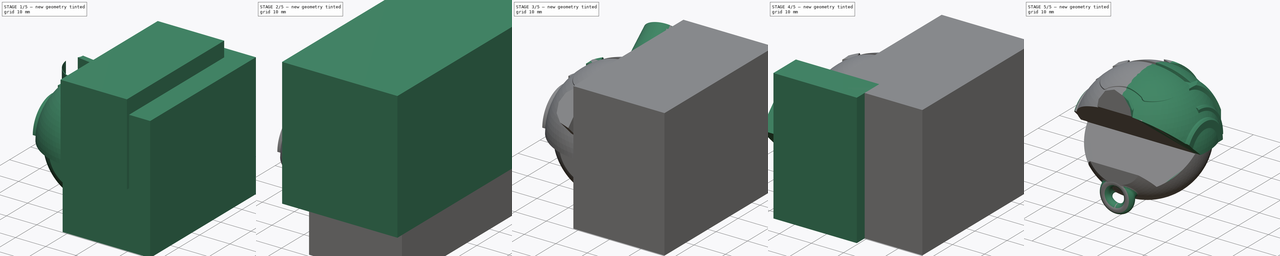
[diagram: build sequence overview — one tinted view per stage of 5, left to right]
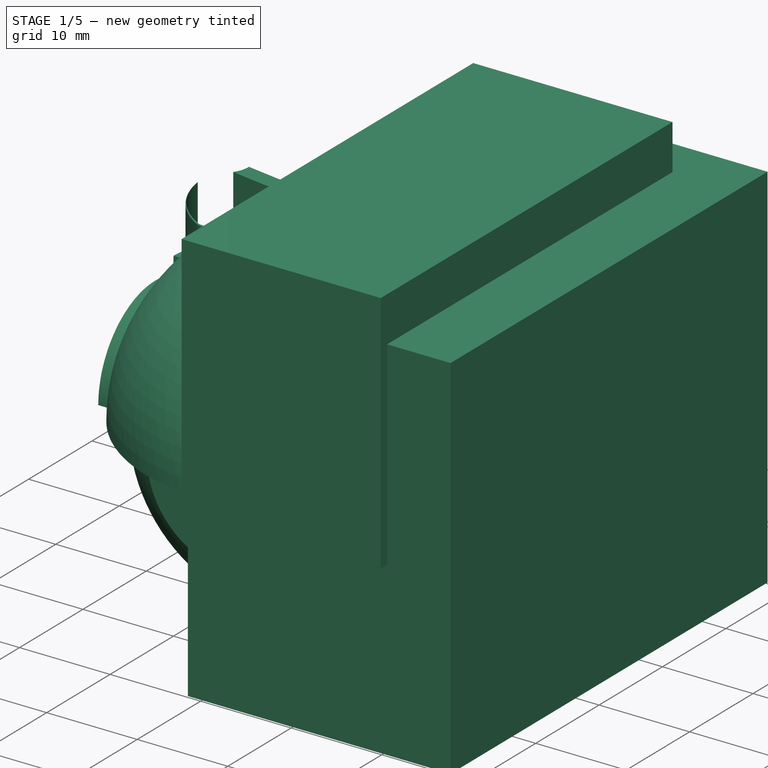
[diagram: stage 1 of 5 — iso view after this stage's code; geometry added in this stage tinted green]
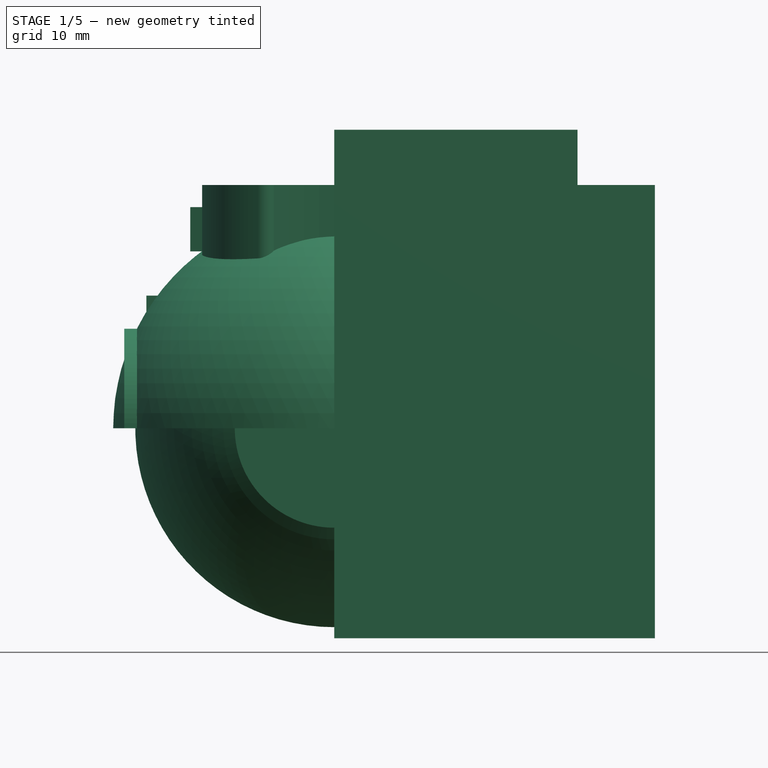
[diagram: stage 1 of 5 — front view after this stage's code; geometry added in this stage tinted green]
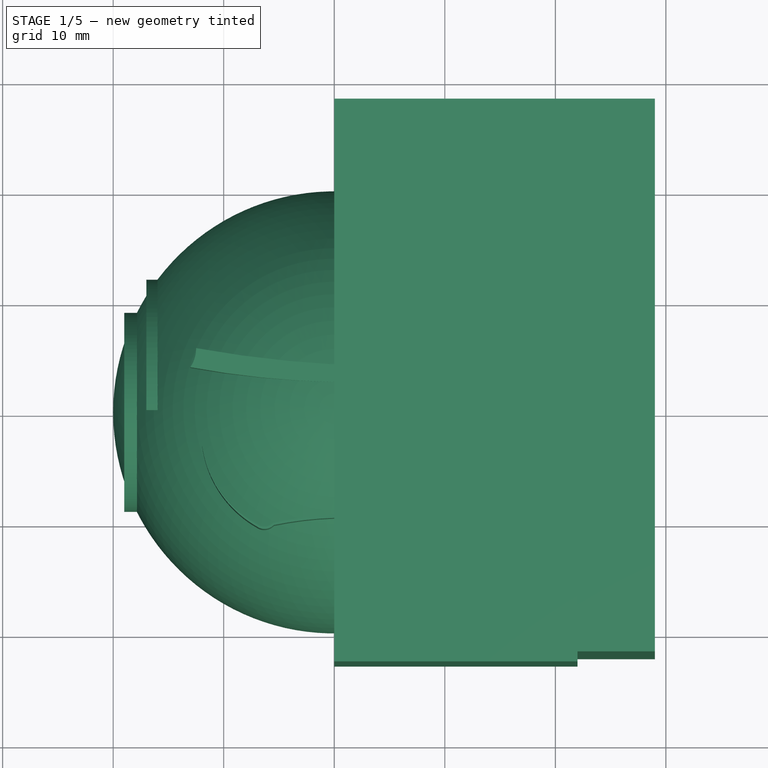
[diagram: stage 1 of 5 — top view after this stage's code; geometry added in this stage tinted green]
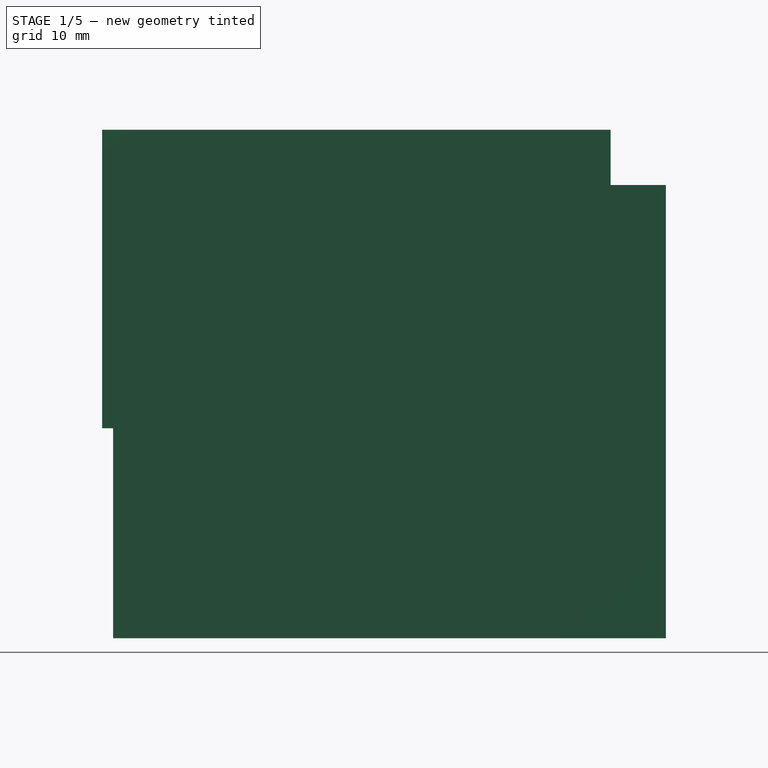
[diagram: stage 1 of 5 — right view after this stage's code; geometry added in this stage tinted green]
FCSTD DOCUMENT  (FreeCAD 0.16R6706 (Git))
Label: IronManHelmet-Key-Chain
License: All rights reserved
LicenseURL: http://en.wikipedia.org/wiki/All_rights_reserved
objects: Part::Cut×15, Part::MultiFuse×9, Part::Box×6, Part::Feature×5, Part::Sphere×5, Sketcher::SketchObject×5, PartDesign::Pad×5, Part::Cylinder×2, Part::Fillet×2, Part::Chamfer×2, Part::Cone×1, Part::Prism×1, Part::Mirroring×1, Part::Torus×1
note: 65 computed .brp shape members not serialized (recipe doc carries the construction recipe); baked Part::Feature solids carry a one-line shape summary decoded from their .brp

FEATURE [Part::Feature] Cut001  label="key-model-002"
  Placement = pos=(0,-11.7436,-26.4262) rot=(0.57735,0.57735,-0.57735;2.0944rad)
  shape: bbox 24.12 x 2.3 x 55.33 mm, 44 faces (baked)
FEATURE [Part::Feature] Sweep001  label="key-ring-model-002"
  Placement = pos=(0,-15.0487,-23.0245) rot=(-0.038302,0.998532,0.038302;1.57227rad)
  shape: bbox 4.645 x 27.51 x 24.52 mm, 4 faces (baked)
FEATURE [Part::Sphere] Sphere  label="Esfera"
  Angle1 = -90
  Angle2 = 90
  Angle3 = 360
  Radius = 18
FEATURE [Part::Sphere] Sphere001  label="Esfera001"
  Angle1 = 0
  Angle2 = 90
  Angle3 = 360
  Radius = 20
FEATURE [Part::Cut] Cut
  Base = -> Sphere001
  Tool = -> Sphere
FEATURE [Sketcher::SketchObject] Sketch001
  Placement = pos=(0,0,16) rot=(0,0,1;0rad)
  sketch-geometry (4):
    g0: ArcOfCircle CenterX=5.68388 CenterY=105.874 CenterZ=0 NormalX=0 NormalY=0 NormalZ=1 Radius=102.039 StartAngle=4.53326 EndAngle=4.65666
    g1: ArcOfCircle CenterX=-15.5234 CenterY=5.45145 CenterZ=0 NormalX=0 NormalY=0 NormalZ=1 Radius=3.02715 StartAngle=5.68468 EndAngle=6.28859
    g2: ArcOfCircle CenterX=1.47752 CenterY=80.7429 CenterZ=0 NormalX=0 NormalY=0 NormalZ=1 Radius=78.3504 StartAngle=4.52625 EndAngle=4.69353
    g3: LineSegment StartX=0 StartY=3.99361 StartZ=0 EndX=0 EndY=2.40645 EndZ=0
  constraints (6):
    c: PointOnObject(g0,g-2)
    c: Coincident(g1,g0)
    c: Coincident(g2,g1)
    c: PointOnObject(g2,g-2)
    c: Coincident(g3,g0)
    c: Coincident(g3,g2)
FEATURE [PartDesign::Pad] Pad
  Length = 4
  Length2 = 100
  Placement = pos=(0,0,16) rot=(0,0,1;0rad)
  Sketch = -> Sketch001
  Type = 0
FEATURE [Part::Box] Box  label="Cubo"
  Height = 27
  Length = 22
  Placement = pos=(0,-23,0) rot=(0,0,1;0rad)
  Width = 46
FEATURE [Sketcher::SketchObject] Sketch005
  Placement = pos=(0,0,12) rot=(0,0,1;0rad)
  sketch-geometry (7):
    g0: ArcOfCircle CenterX=1.14704 CenterY=-43.2747 CenterZ=0 NormalX=0 NormalY=0 NormalZ=1 Radius=33.371 StartAngle=1.60518 EndAngle=1.77022
    g1: ArcOfCircle CenterX=-6.31576 CenterY=-9.74356 CenterZ=0 NormalX=0 NormalY=0 NormalZ=1 Radius=1.18344 StartAngle=4.12009 EndAngle=5.51583
    g2: ArcOfCircle CenterX=-2.05366 CenterY=-2.03026 CenterZ=0 NormalX=0 NormalY=0 NormalZ=1 Radius=9.99196 StartAngle=3.27658 EndAngle=4.19723
    g3: ArcOfCircle CenterX=-2.44752 CenterY=-2.01982 CenterZ=0 NormalX=0 NormalY=0 NormalZ=1 Radius=9.60329 StartAngle=3.28318 EndAngle=4.22077
    g4: ArcOfCircle CenterX=-6.32345 CenterY=-9.63369 CenterZ=0 NormalX=0 NormalY=0 NormalZ=1 Radius=1.07619 StartAngle=4.05532 EndAngle=5.51401
    g5: ArcOfCircle CenterX=2.16611 CenterY=-45.6302 CenterZ=0 NormalX=0 NormalY=0 NormalZ=1 Radius=36.0827 StartAngle=1.63086 EndAngle=1.78631
    g6: LineSegment StartX=0 StartY=-9.61258 StartZ=0 EndX=0 EndY=-9.92346 EndZ=0
  constraints (9):
    c: PointOnObject(g0,g-2)
    c: Coincident(g1,g0)
    c: Coincident(g3,g2)
    c: Coincident(g2,g1)
    c: Coincident(g4,g3)
    c: Coincident(g5,g4)
    c: PointOnObject(g5,g-2)
    c: Coincident(g6,g5)
    c: Coincident(g6,g0)
FEATURE [PartDesign::Pad] Pad004
  Length = 10
  Length2 = 100
  Placement = pos=(0,0,12) rot=(0,0,1;0rad)
  Sketch = -> Sketch005
  Type = 0
FEATURE [Part::Cylinder] Cylinder  label="Cilindro"
  Angle = 180
  Height = 3
  Placement = pos=(-19,0,0) rot=(0.57735,0.57735,0.57735;2.0944rad)
  Radius = 9
FEATURE [Part::Cylinder] Cylinder001  label="Cilindro001"
  Angle = 90
  Height = 2
  Placement = pos=(-17,0,0) rot=(0.57735,0.57735,0.57735;2.0944rad)
  Radius = 12
FEATURE [Part::Sphere] Sphere002004  label="Esfera006"
  Angle1 = -60
  Angle2 = 90
  Angle3 = 360
  Placement = pos=(0,0,0) rot=(-1,0,0;1.5708rad)
  Radius = 18
FEATURE [Part::Box] Box005  label="Cubo corte de mitad"
  Height = 41
  Length = 29
  Placement = pos=(0,-22,-19) rot=(0,0,1;0rad)
  Width = 50
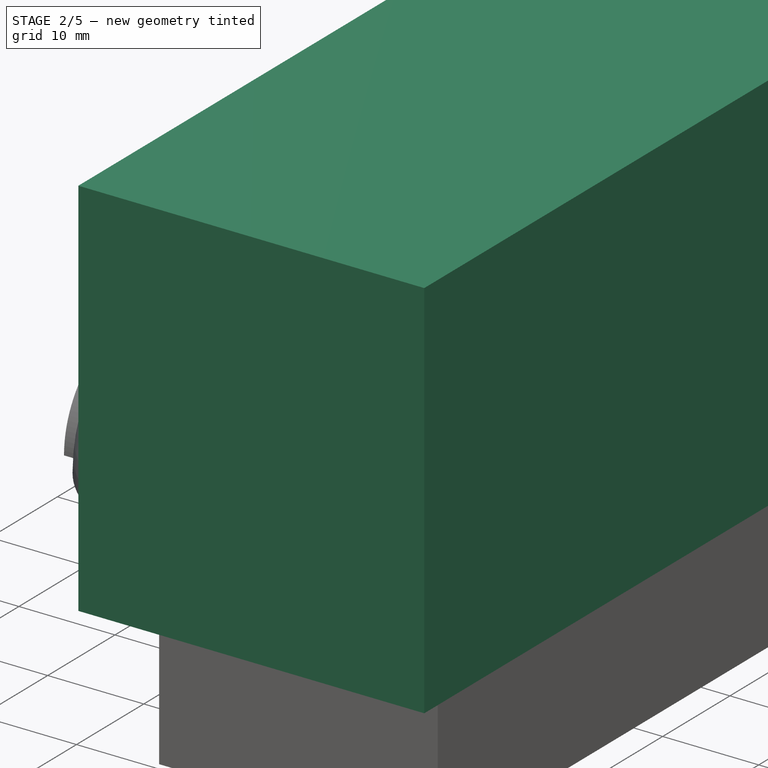
[diagram: stage 2 of 5 — iso view after this stage's code; geometry added in this stage tinted green]
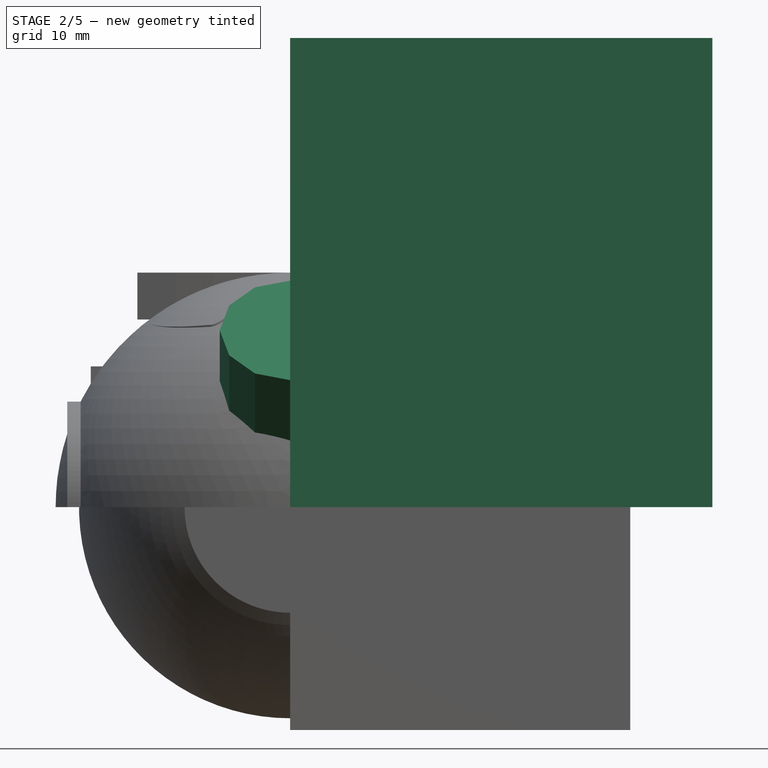
[diagram: stage 2 of 5 — front view after this stage's code; geometry added in this stage tinted green]
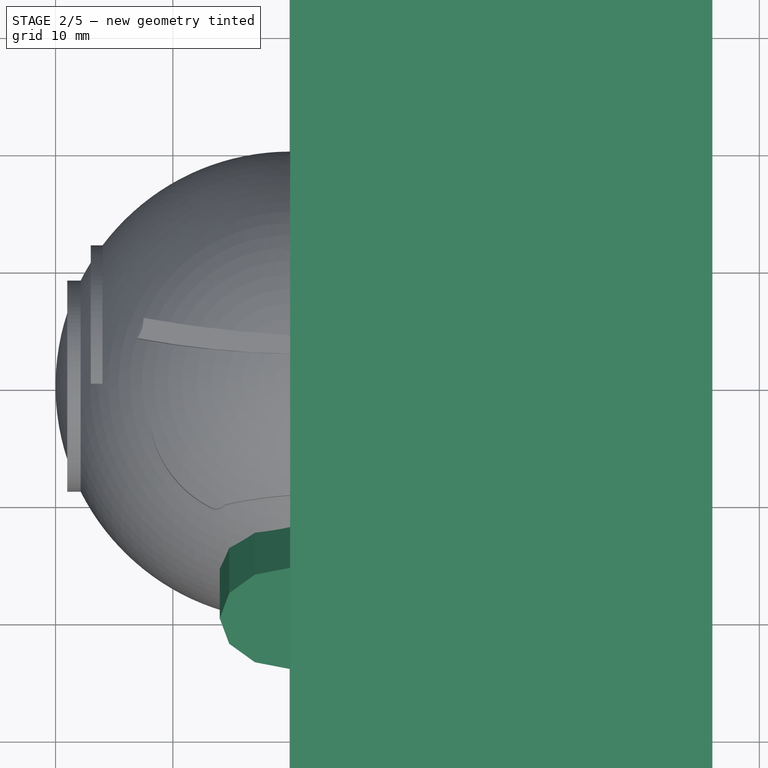
[diagram: stage 2 of 5 — top view after this stage's code; geometry added in this stage tinted green]
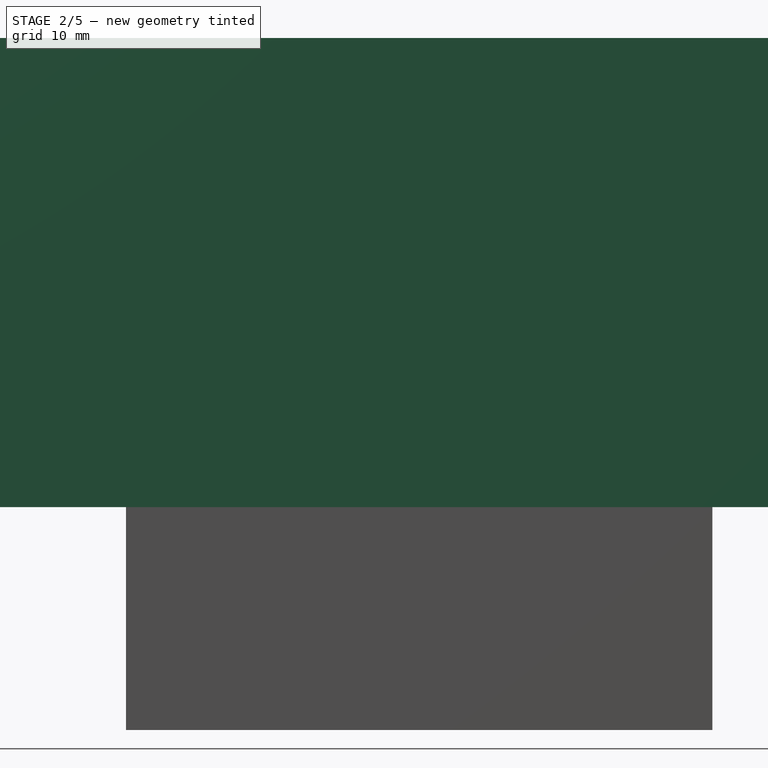
[diagram: stage 2 of 5 — right view after this stage's code; geometry added in this stage tinted green]
FEATURE [Part::Cut] Cut002
  Base = -> Cut
  Tool = -> Pad
FEATURE [Part::Cut] Cut003  label="Casco base"
  Base = -> Cut002
  Tool = -> Box
FEATURE [Sketcher::SketchObject] Sketch004
  Placement = pos=(0,0,16) rot=(0,0,1;0rad)
  sketch-geometry (4):
    g0: ArcOfCircle CenterX=5.68388 CenterY=105.874 CenterZ=0 NormalX=0 NormalY=0 NormalZ=1 Radius=102.039 StartAngle=4.53326 EndAngle=4.65666
    g1: ArcOfCircle CenterX=-15.5234 CenterY=5.45145 CenterZ=0 NormalX=0 NormalY=0 NormalZ=1 Radius=3.02715 StartAngle=5.68468 EndAngle=6.28859
    g2: ArcOfCircle CenterX=1.47752 CenterY=80.7429 CenterZ=0 NormalX=0 NormalY=0 NormalZ=1 Radius=78.3504 StartAngle=4.52625 EndAngle=4.69353
    g3: LineSegment StartX=0 StartY=3.99361 StartZ=0 EndX=0 EndY=2.40645 EndZ=0
  constraints (6):
    c: PointOnObject(g0,g-2)
    c: Coincident(g1,g0)
    c: Coincident(g2,g1)
    c: PointOnObject(g2,g-2)
    c: Coincident(g3,g0)
    c: Coincident(g3,g2)
FEATURE [PartDesign::Pad] Pad003
  Length = 4
  Length2 = 100
  Placement = pos=(0,0,16) rot=(0,0,1;0rad)
  Sketch = -> Sketch004
  Type = 0
FEATURE [Part::Box] Box001  label="Cubo001"
  Height = 40
  Length = 36
  Placement = pos=(0,-34,0) rot=(0,0,1;0rad)
  Width = 68
FEATURE [Part::Cut] Cut003001007  label="Casco base con boca"
  Base = -> Cut003
  Tool = -> Pad004
FEATURE [Part::Prism] Prism  label="Prisma"
  Circumradius = 6
  Height = 10
  Placement = pos=(0,-13,8) rot=(1,0,0;0.785398rad)
  Polygon = 12
FEATURE [Part::Box] Box002  label="Cubo002"
  Height = 27
  Length = 22
  Placement = pos=(0,-25,0) rot=(0,0,1;0rad)
  Width = 46
FEATURE [Part::Cut] Cut003001008
  Base = -> Prism
  Tool = -> Box002
FEATURE [Part::MultiFuse] Fusion001
  Shapes = -> [Cut003001007,Cylinder,Cylinder001]
FEATURE [Part::MultiFuse] Fusion002
  Shapes = -> [Fusion001,Cut003001008]
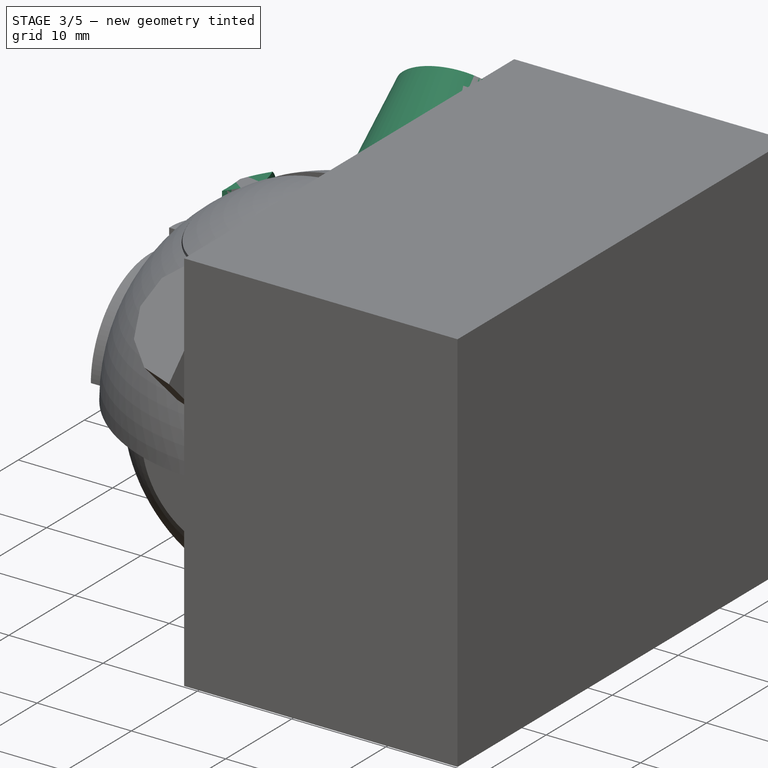
[diagram: stage 3 of 5 — iso view after this stage's code; geometry added in this stage tinted green]
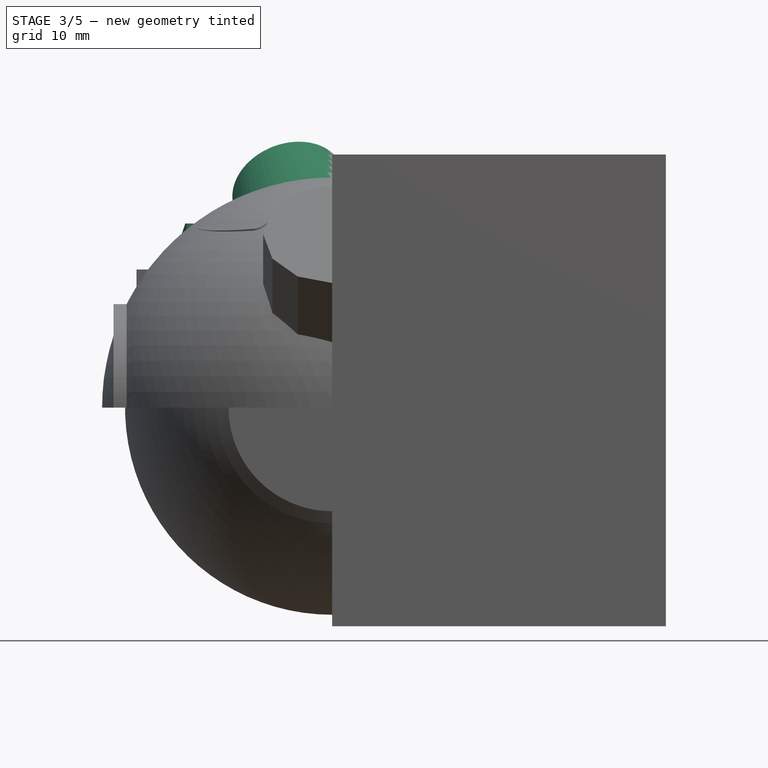
[diagram: stage 3 of 5 — front view after this stage's code; geometry added in this stage tinted green]
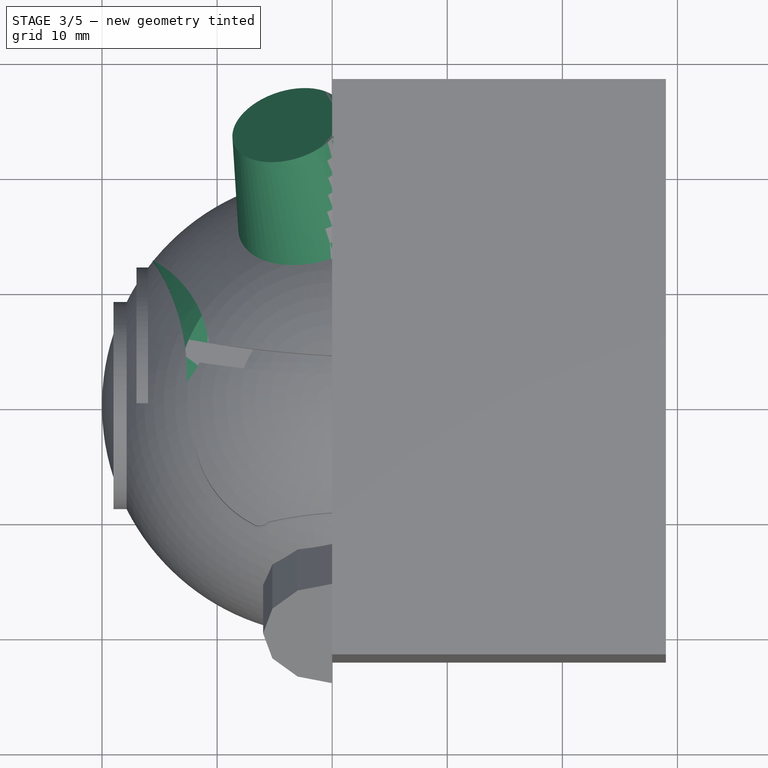
[diagram: stage 3 of 5 — top view after this stage's code; geometry added in this stage tinted green]
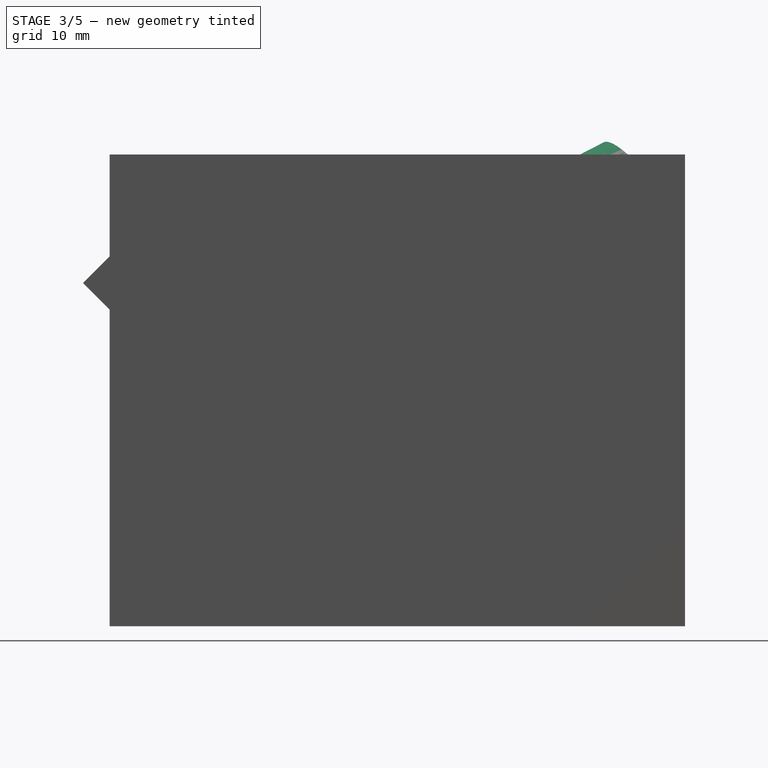
[diagram: stage 3 of 5 — right view after this stage's code; geometry added in this stage tinted green]
FEATURE [Part::Cone] Cone  label="Cono"
  Angle = 360
  Height = 10
  Placement = pos=(-3.82417,24.0428,19.1408) rot=(0.525449,0.798316,-0.294271;2.43641rad)
  Radius1 = 5
  Radius2 = 7
FEATURE [Sketcher::SketchObject] Sketch003
  sketch-geometry (3):
    g0: ArcOfCircle CenterX=-20.4589 CenterY=3.99798 CenterZ=0 NormalX=0 NormalY=0 NormalZ=1 Radius=9.80672 StartAngle=0.135624 EndAngle=1.05089
    g1: ArcOfCircle CenterX=-31.0802 CenterY=2.49904 CenterZ=0 NormalX=0 NormalY=0 NormalZ=1 Radius=18.4456 StartAngle=6.24478 EndAngle=6.85679
    g2: ArcOfCircle CenterX=-20.4659 CenterY=8.28885 CenterZ=0 NormalX=0 NormalY=0 NormalZ=1 Radius=10.1657 StartAngle=5.58971 EndAngle=5.98722
  constraints (3):
    c: Coincident(g1,g0)
    c: Coincident(g2,g1)
    c: Coincident(g2,g0)
FEATURE [PartDesign::Pad] Pad002
  Length = 16
  Length2 = 100
  Sketch = -> Sketch003
  Type = 0
FEATURE [Part::Feature] Sphere002001  label="Esfera003"
  shape: bbox 36 x 36 x 36 mm, 1 faces (baked)
FEATURE [Part::Cut] Cut003001002
  Base = -> Pad002
  Tool = -> Sphere002001
FEATURE [Part::Sphere] Sphere002002  label="Esfera004"
  Angle1 = -90
  Angle2 = 90
  Angle3 = 360
  Radius = 21
FEATURE [Part::Sphere] Sphere002003  label="Esfera005"
  Angle1 = 0
  Angle2 = 90
  Angle3 = 360
  Radius = 29.9
FEATURE [Part::Cut] Cut003001003
  Base = -> Sphere002003
  Tool = -> Sphere002002
FEATURE [Part::Cut] Cut003001004  label="casco para cortes"
  Base = -> Cut003001003
  Tool = -> Pad003
FEATURE [Part::Cut] Cut003001005  label="casco para cortes001"
  Base = -> Cut003001004
  Tool = -> Box001
FEATURE [Part::Cut] Cut003001006  label="Coso ojos"
  Base = -> Cut003001002
  Tool = -> Cut003001005
FEATURE [Part::MultiFuse] Fusion003
  Shapes = -> [Fusion002,Cut003001006]
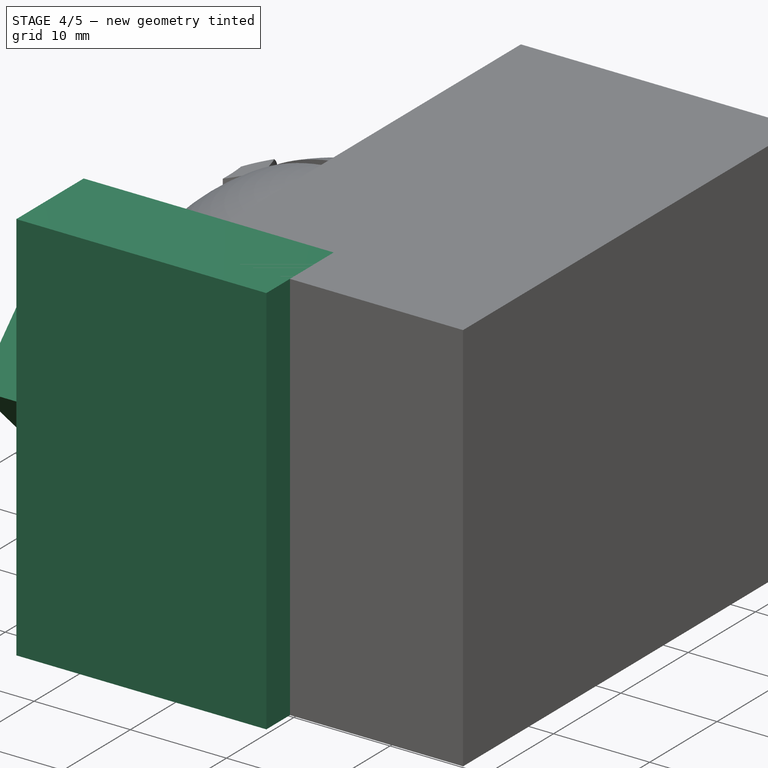
[diagram: stage 4 of 5 — iso view after this stage's code; geometry added in this stage tinted green]
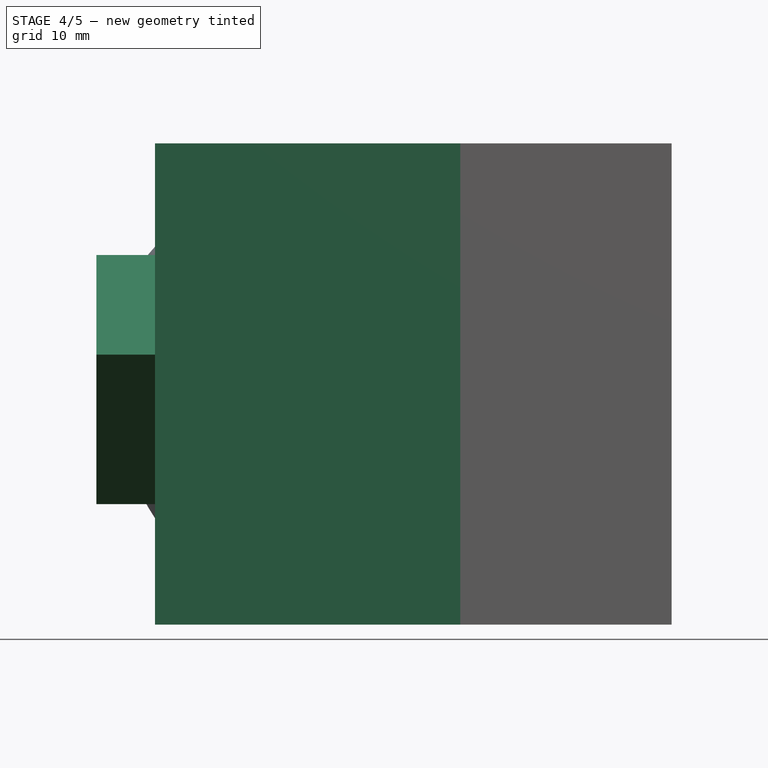
[diagram: stage 4 of 5 — front view after this stage's code; geometry added in this stage tinted green]
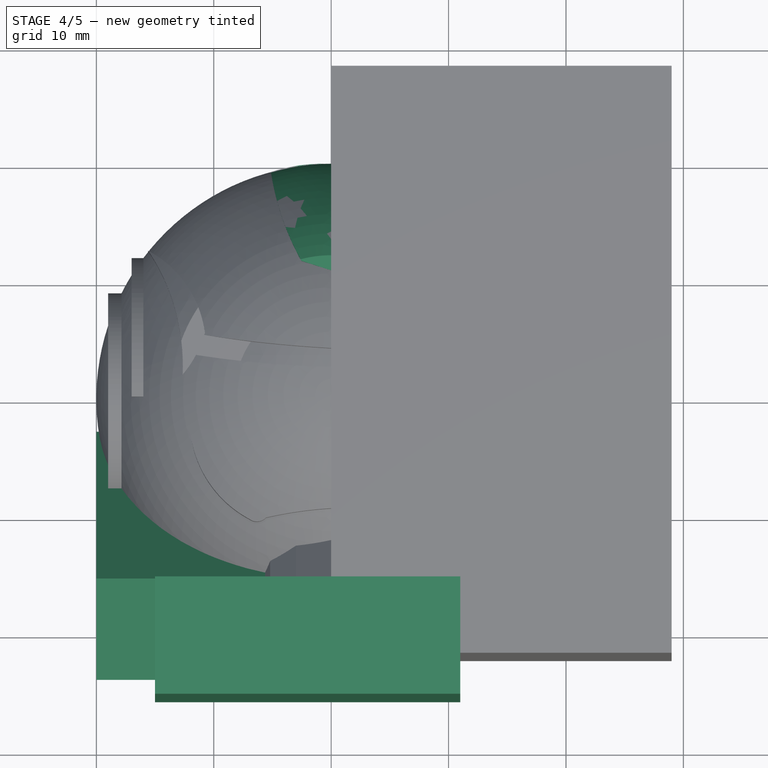
[diagram: stage 4 of 5 — top view after this stage's code; geometry added in this stage tinted green]
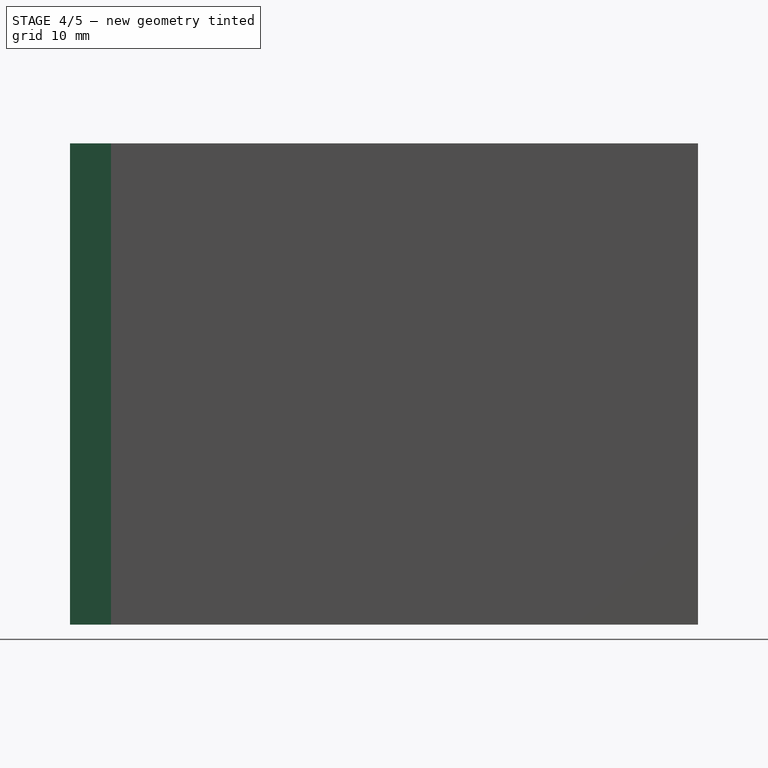
[diagram: stage 4 of 5 — right view after this stage's code; geometry added in this stage tinted green]
FEATURE [Sketcher::SketchObject] Sketch002
  sketch-geometry (4):
    g0: ArcOfCircle CenterX=17.3703 CenterY=22.4168 CenterZ=0 NormalX=0 NormalY=0 NormalZ=1 Radius=22.7163 StartAngle=3.279 EndAngle=3.64398
    g1: LineSegment StartX=-2.53905 StartY=11.4784 StartZ=0 EndX=0 EndY=10.6624 EndZ=0
    g2: LineSegment StartX=0 StartY=10.6624 StartZ=0 EndX=0 EndY=19.995 EndZ=0
    g3: ArcOfCircle CenterX=-0.665359 CenterY=5.50915 CenterZ=0 NormalX=0 NormalY=0 NormalZ=1 Radius=14.5012 StartAngle=1.5249 EndAngle=1.8839
  constraints (6):
    c: Coincident(g1,g0)
    c: PointOnObject(g1,g-2)
    c: Coincident(g2,g1)
    c: Vertical(g2)
    c: Coincident(g3,g2)
    c: Coincident(g3,g0)
FEATURE [PartDesign::Pad] Pad001
  Length = 17
  Length2 = 100
  Sketch = -> Sketch002
  Type = 0
FEATURE [Part::Feature] Cut003001  label="Caso para corte"
  Placement = pos=(0,2,2) rot=(0,0,1;0rad)
  shape: bbox 20 x 40 x 20 mm, 8 faces (baked)
FEATURE [Part::Feature] Sphere002  label="Esfera002"
  shape: bbox 36 x 36 x 36 mm, 1 faces (baked)
FEATURE [Part::Cut] Cut003002
  Base = -> Pad001
  Tool = -> Sphere002
FEATURE [Part::MultiFuse] Fusion
  Shapes = -> [Cut003001,Cone]
FEATURE [Part::Cut] Cut003003
  Base = -> Fusion
  Tool = -> Pad001
FEATURE [Part::Cut] Cut003004  label="Coso frente"
  Base = -> Cut003002
  Tool = -> Cut003003
FEATURE [Part::MultiFuse] Fusion004
  Shapes = -> [Fusion003,Cut003004]
FEATURE [Part::Box] Box003  label="Cubo003"
  Height = 41
  Length = 26
  Placement = pos=(-15,-25.5,-19) rot=(0,0,1;0rad)
  Width = 10
FEATURE [Part::Box] Box004  label="Cubo004"
  Height = 12
  Length = 30
  Placement = pos=(-20,-24,4) rot=(-1,0,0;0.785398rad)
  Width = 18
FEATURE [Part::MultiFuse] Fusion005
  Shapes = -> [Box004,Box003]
FEATURE [Part::MultiFuse] Fusion006
  Shapes = -> [Fusion004,Sphere002004]
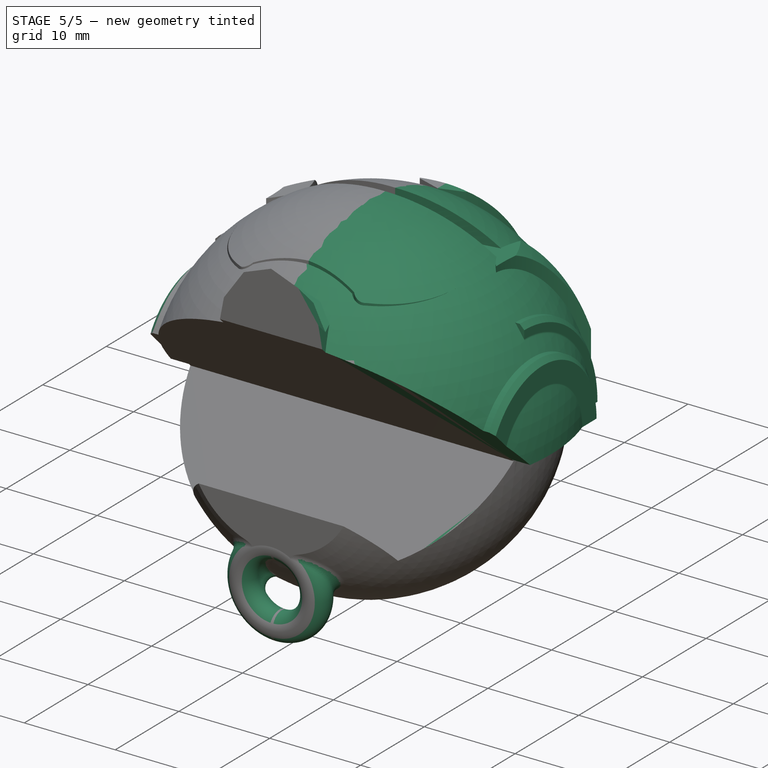
[diagram: stage 5 of 5 — iso view after this stage's code; geometry added in this stage tinted green]
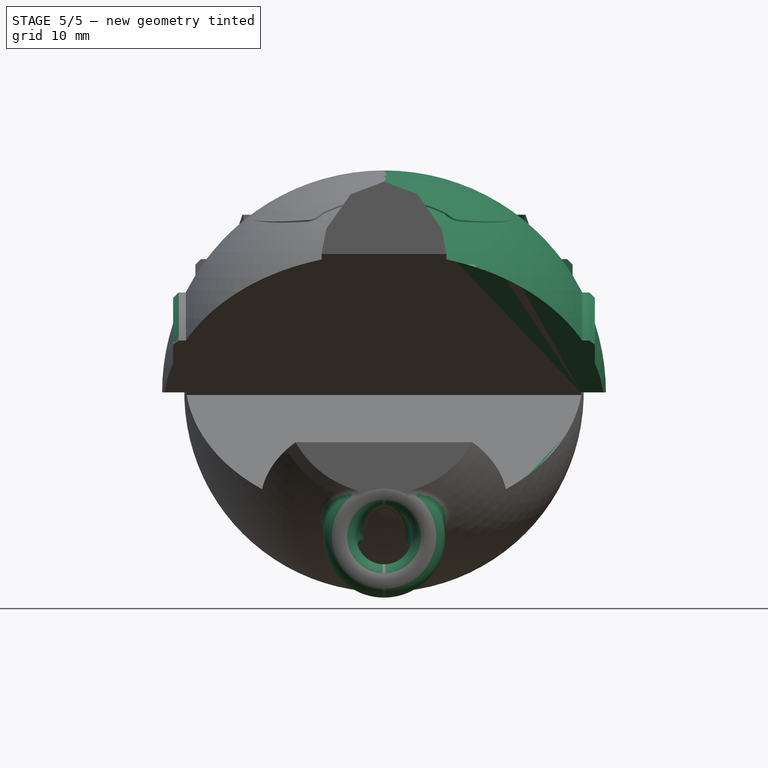
[diagram: stage 5 of 5 — front view after this stage's code; geometry added in this stage tinted green]
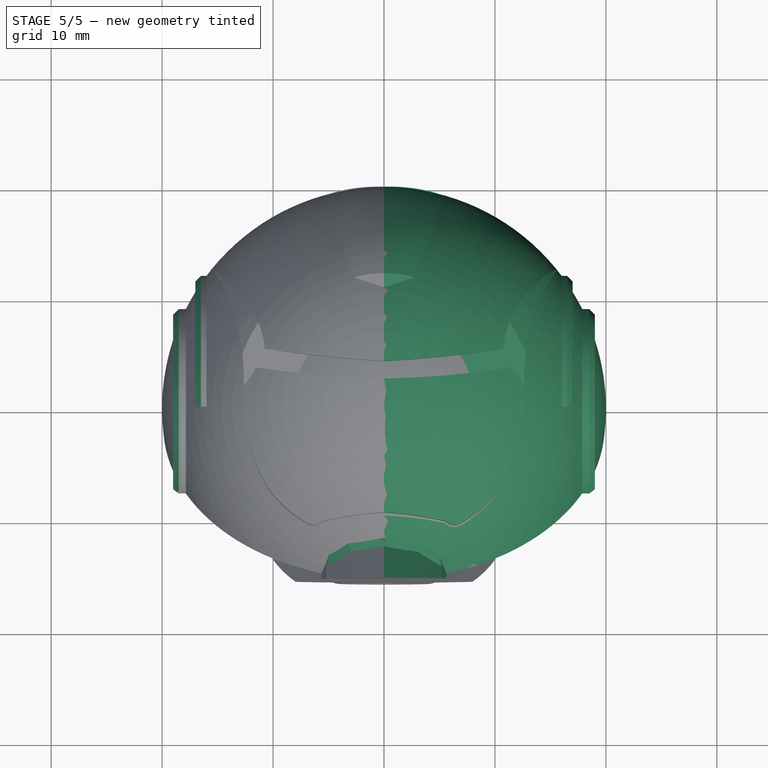
[diagram: stage 5 of 5 — top view after this stage's code; geometry added in this stage tinted green]
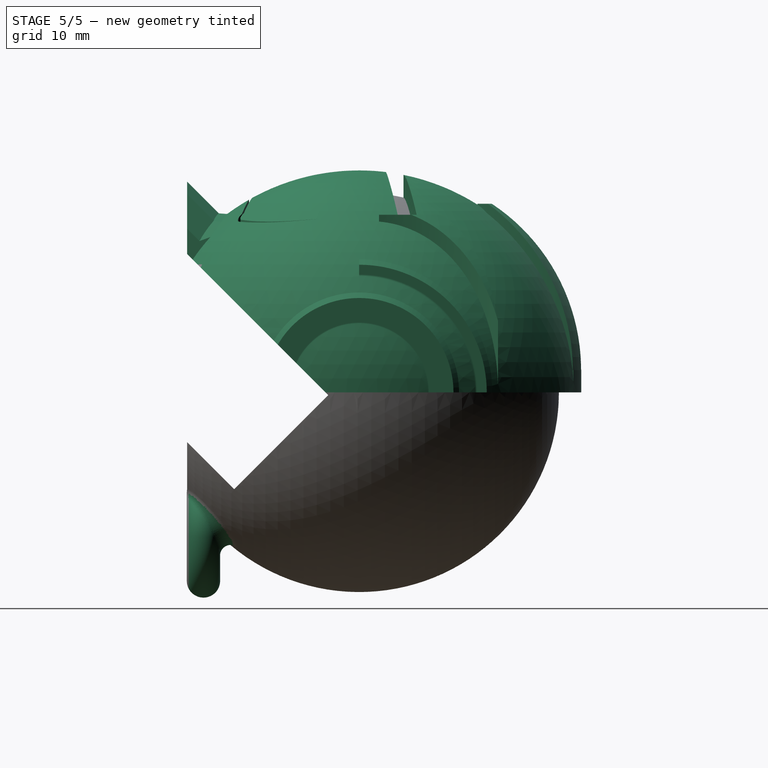
[diagram: stage 5 of 5 — right view after this stage's code; geometry added in this stage tinted green]
FEATURE [Part::Cut] Cut003001009
  Base = -> Fusion006
  Tool = -> Fusion005
FEATURE [Part::Cut] Cut003001010
  Base = -> Cut003001009
  Tool = -> Box005
FEATURE [Part::Mirroring] Part__Mirroring  label="Mirror de Caso"
  Base = (0,0,0)
  Normal = (1,0,0)
  Source = -> Cut003001010
FEATURE [Part::Torus] Torus  label="ToroParaKeyRing"
  Angle1 = -180
  Angle2 = 180
  Angle3 = 360
  Placement = pos=(0,-14.0333,-13) rot=(-0.57735,0.57735,0.57735;2.0944rad)
  Radius1 = 4
  Radius2 = 1.5
FEATURE [Part::MultiFuse] Fusion007  label="Unión de mitades de casco"
  Shapes = -> [Cut003001010,Part__Mirroring]
FEATURE [Part::MultiFuse] Fusion008
  Shapes = -> [Torus,Fusion007]
FEATURE [Part::Fillet] Fillet
  Base = -> Fusion008
  Edges = 4 edges r=1: [Edge35,Edge36,Edge124,Edge125]
FEATURE [Part::Chamfer] Chamfer
  Base = -> Fillet
  Edges = 4 edges r=0.5: [Edge76,Edge137,Edge139,Edge150]
FEATURE [Part::Fillet] Fillet001
  Base = -> Chamfer
  Edges = 4 edges r=0.3: [Edge21,Edge67,Edge115,Edge128]
FEATURE [Part::Chamfer] Chamfer001
  Base = -> Fillet001
  Edges = 4 edges r=0.5: [Edge67,Edge68,Edge118,Edge119]
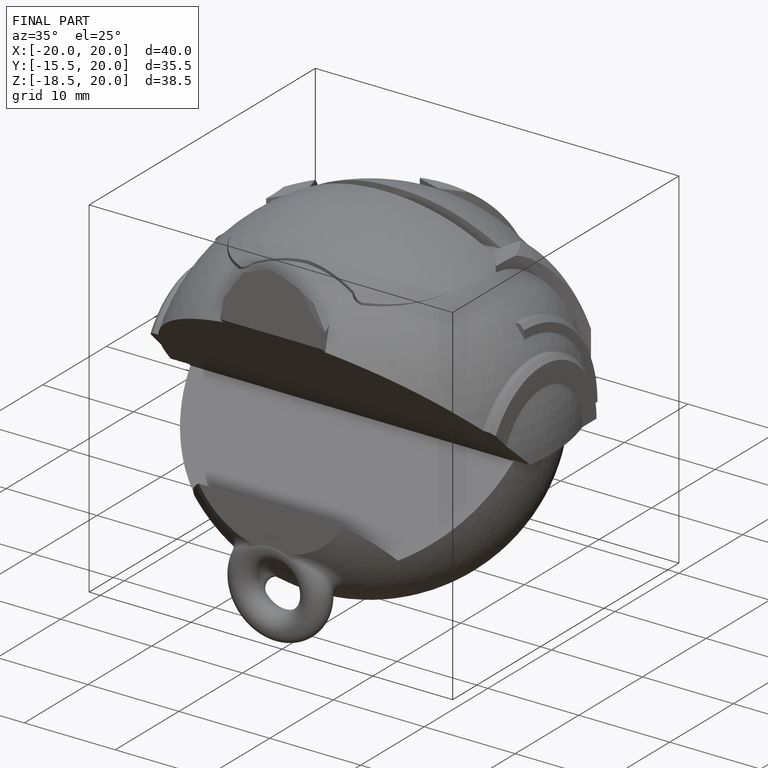
[diagram: finished part — iso view with bounding-box wireframe]
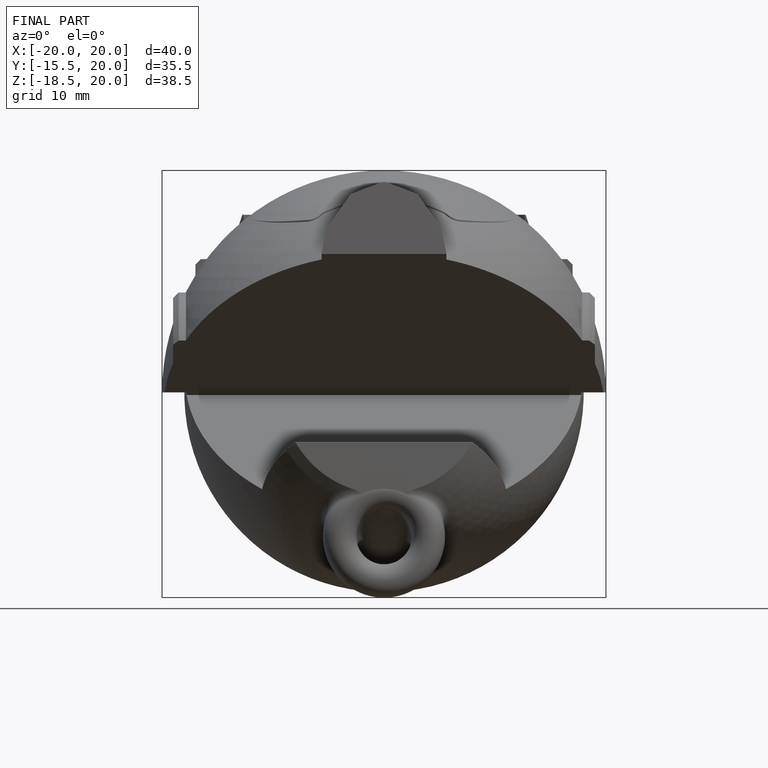
[diagram: finished part — front view with bounding-box wireframe]
